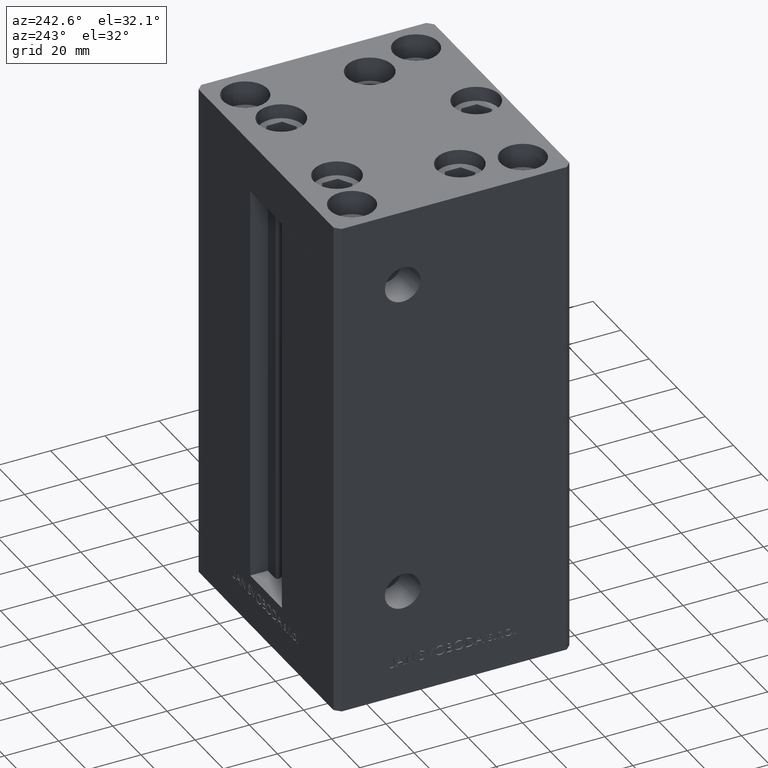
[diagram: clean part render]
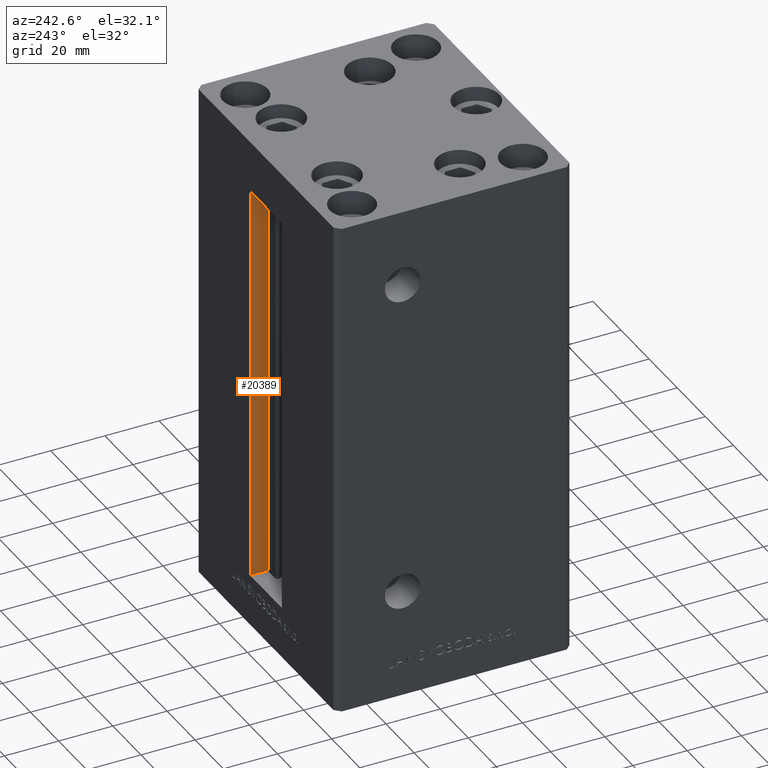
[diagram: same view with one face highlighted and labeled with its STEP entity id]
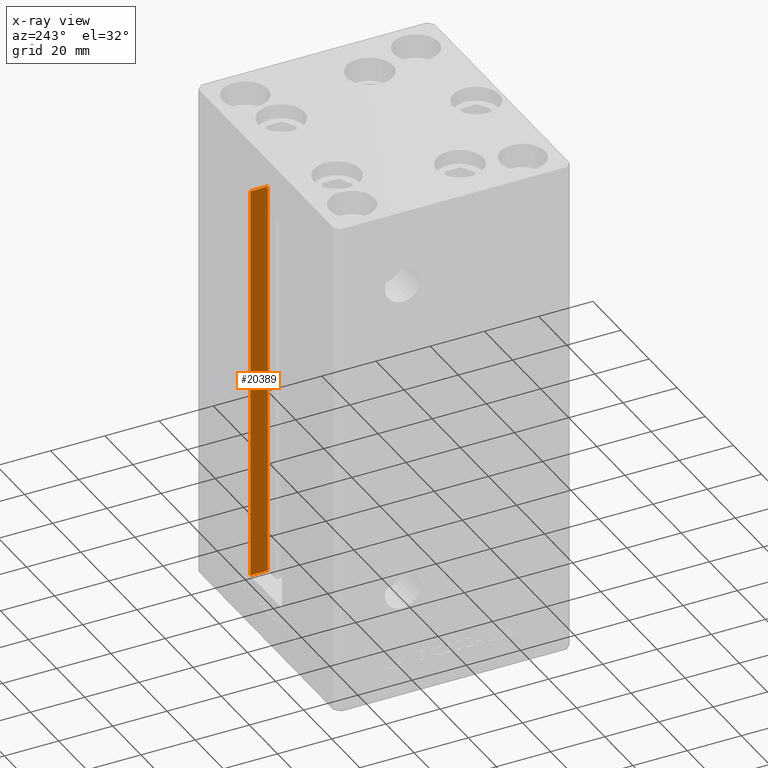
[diagram: x-ray of the same camera — body ghosted, the highlighted face saturated]
A machine part, auxiliary view. The second image highlights one B-rep face of the part: STEP entity #20389.
The next image is the same camera in x-ray: the body ghosted, the highlighted face saturated — about 0% of this face is hidden behind the body in this view.
In plain terms, the highlighted planar face has unit normal (1, 0, 0).
Its self-contained STEP definition (entity closure, byte-faithful):
#712 = LINE ( 'NONE', #8850, #42846 ) ;
#2175 = EDGE_LOOP ( 'NONE', ( #10133, #25653, #21712, #11278 ) ) ;
#3506 = CARTESIAN_POINT ( 'NONE',  ( 11.24999999999999822, 36.99999999999999289, 0.000000000000000000 ) ) ;
#3713 = PLANE ( 'NONE',  #37788 ) ;
#5331 = EDGE_CURVE ( 'NONE', #9099, #18453, #11393, .T. ) ;
#7752 = CARTESIAN_POINT ( 'NONE',  ( 11.24999999999999822, 36.99999999999999289, 0.000000000000000000 ) ) ;
#8257 = CARTESIAN_POINT ( 'NONE',  ( 11.24999999999999822, 36.99999999999999289, 148.5000000000000000 ) ) ;
#8850 = CARTESIAN_POINT ( 'NONE',  ( 11.24999999999999822, 0.000000000000000000, 148.5000000000000000 ) ) ;
#9099 = VERTEX_POINT ( 'NONE', #31669 ) ;
#9432 = VECTOR ( 'NONE', #34918, 1000.000000000000000 ) ;
#10133 = ORIENTED_EDGE ( 'NONE', *, *, #34285, .F. ) ;
#11278 = ORIENTED_EDGE ( 'NONE', *, *, #47214, .F. ) ;
#11393 = LINE ( 'NONE', #3506, #43136 ) ;
#11820 = LINE ( 'NONE', #7752, #9432 ) ;
#15909 = CARTESIAN_POINT ( 'NONE',  ( 11.24999999999999822, 43.50000000000000000, 0.000000000000000000 ) ) ;
#18453 = VERTEX_POINT ( 'NONE', #8257 ) ;
#18977 = DIRECTION ( 'NONE',  ( 1.000000000000000000, -0.000000000000000000, 0.000000000000000000 ) ) ;
#20389 = ADVANCED_FACE ( 'NONE', ( #41559 ), #3713, .F. ) ;
#21712 = ORIENTED_EDGE ( 'NONE', *, *, #5331, .T. ) ;
#22052 = DIRECTION ( 'NONE',  ( 0.000000000000000000, 0.000000000000000000, -1.000000000000000000 ) ) ;
#22760 = VECTOR ( 'NONE', #27831, 1000.000000000000000 ) ;
#23040 = CARTESIAN_POINT ( 'NONE',  ( 11.24999999999999822, 36.99999999999999289, 0.000000000000000000 ) ) ;
#23937 = EDGE_CURVE ( 'NONE', #9099, #44760, #11820, .T. ) ;
#25653 = ORIENTED_EDGE ( 'NONE', *, *, #23937, .F. ) ;
#26878 = DIRECTION ( 'NONE',  ( -0.000000000000000000, -0.000000000000000000, 1.000000000000000000 ) ) ;
#27831 = DIRECTION ( 'NONE',  ( -0.000000000000000000, -0.000000000000000000, 1.000000000000000000 ) ) ;
#27911 = CARTESIAN_POINT ( 'NONE',  ( 11.24999999999999112, 43.50000000000000000, 148.5000000000000000 ) ) ;
#31669 = CARTESIAN_POINT ( 'NONE',  ( 11.24999999999999822, 36.99999999999999289, 0.000000000000000000 ) ) ;
#34285 = EDGE_CURVE ( 'NONE', #44760, #44973, #43047, .T. ) ;
#34918 = DIRECTION ( 'NONE',  ( 0.000000000000000000, 1.000000000000000000, 0.000000000000000000 ) ) ;
#37788 = AXIS2_PLACEMENT_3D ( 'NONE', #23040, #18977, #22052 ) ;
#41559 = FACE_OUTER_BOUND ( 'NONE', #2175, .T. ) ;
#42612 = DIRECTION ( 'NONE',  ( -0.000000000000000000, -1.000000000000000000, 0.000000000000000000 ) ) ;
#42846 = VECTOR ( 'NONE', #42612, 1000.000000000000000 ) ;
#43047 = LINE ( 'NONE', #15909, #22760 ) ;
#43136 = VECTOR ( 'NONE', #26878, 1000.000000000000000 ) ;
#43940 = CARTESIAN_POINT ( 'NONE',  ( 11.24999999999999822, 43.50000000000000000, 0.000000000000000000 ) ) ;
#44760 = VERTEX_POINT ( 'NONE', #43940 ) ;
#44973 = VERTEX_POINT ( 'NONE', #27911 ) ;
#47214 = EDGE_CURVE ( 'NONE', #44973, #18453, #712, .T. ) ;